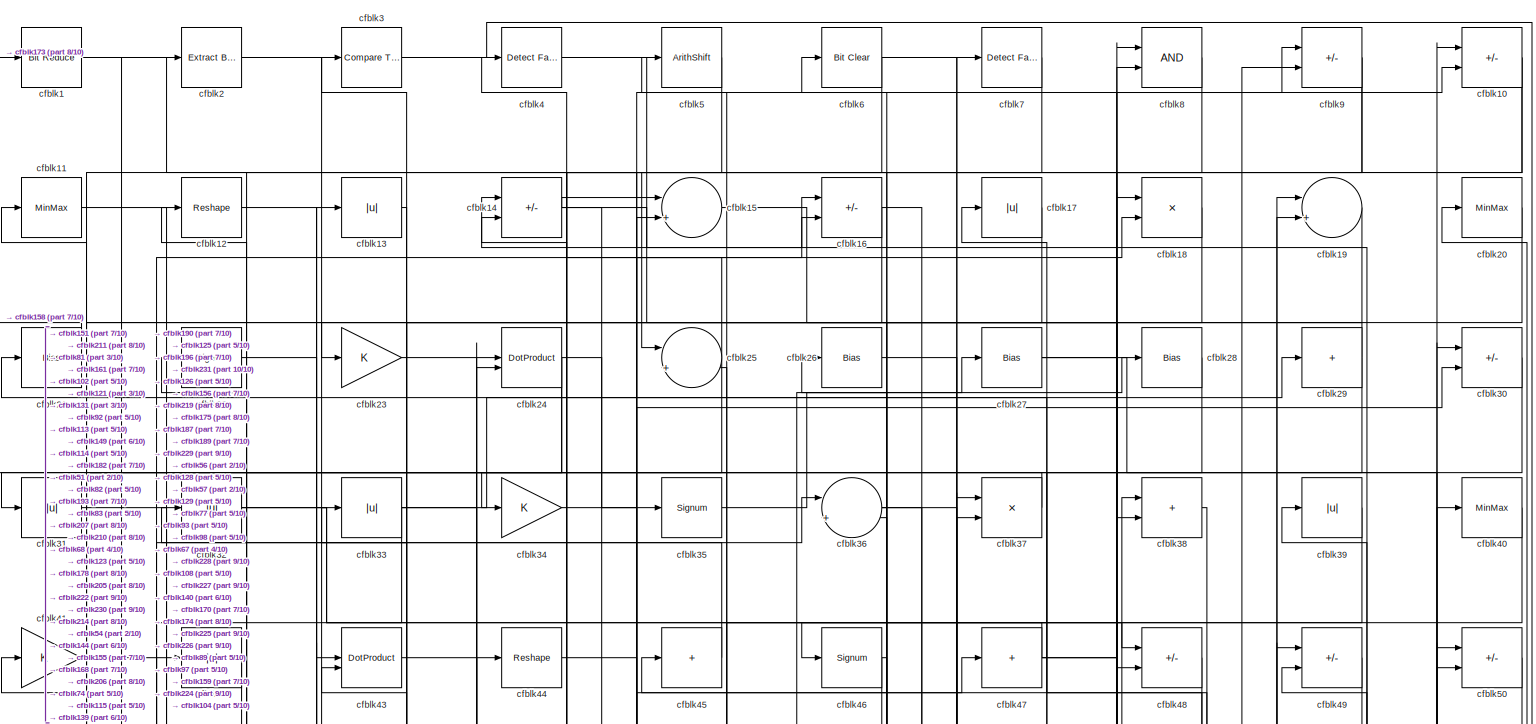
[diagram: root canvas - part 1/10, full width, top band]
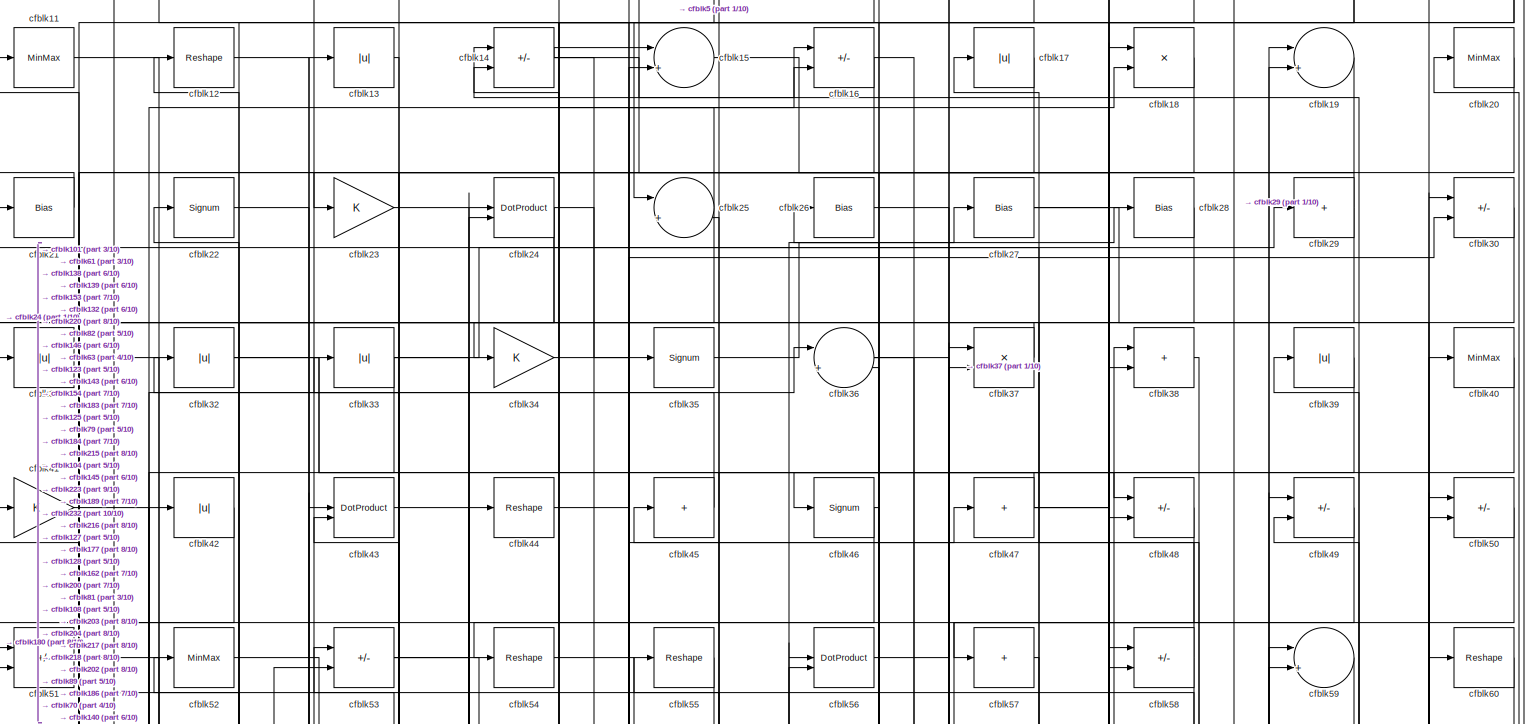
[diagram: root canvas - part 2/10, full width, top band]
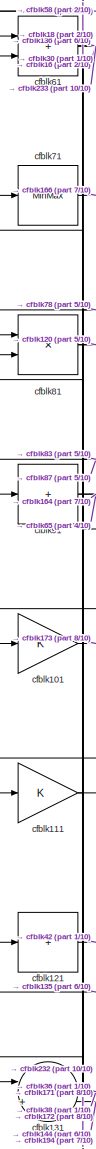
[diagram: root canvas - part 3/10, middle left region]
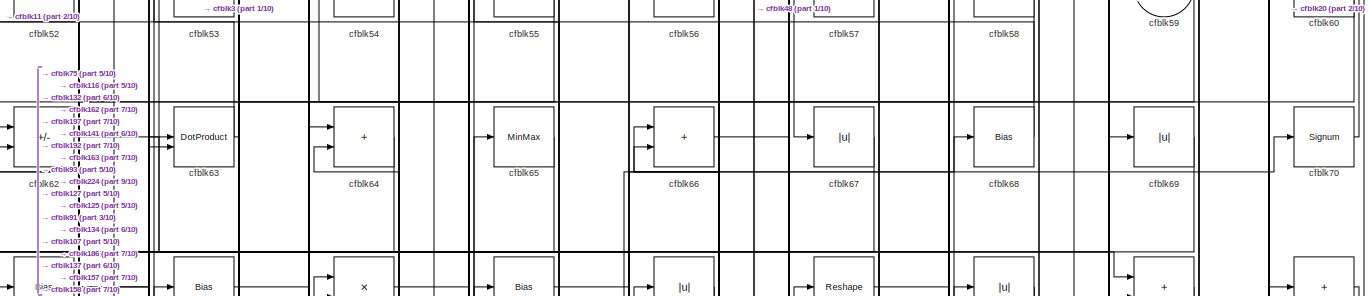
[diagram: root canvas - part 4/10, full width, top band]
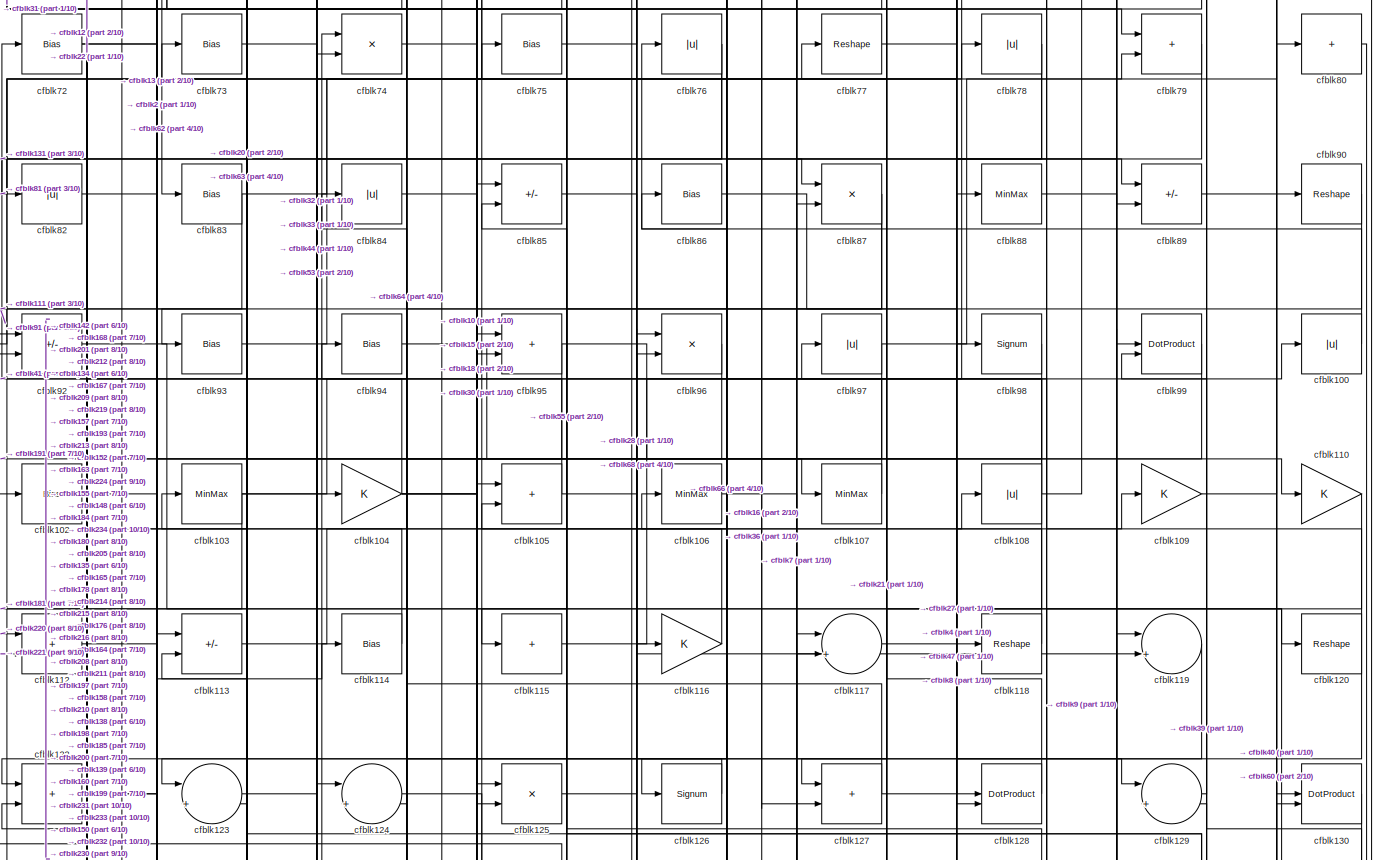
[diagram: root canvas - part 5/10, full width, middle band]
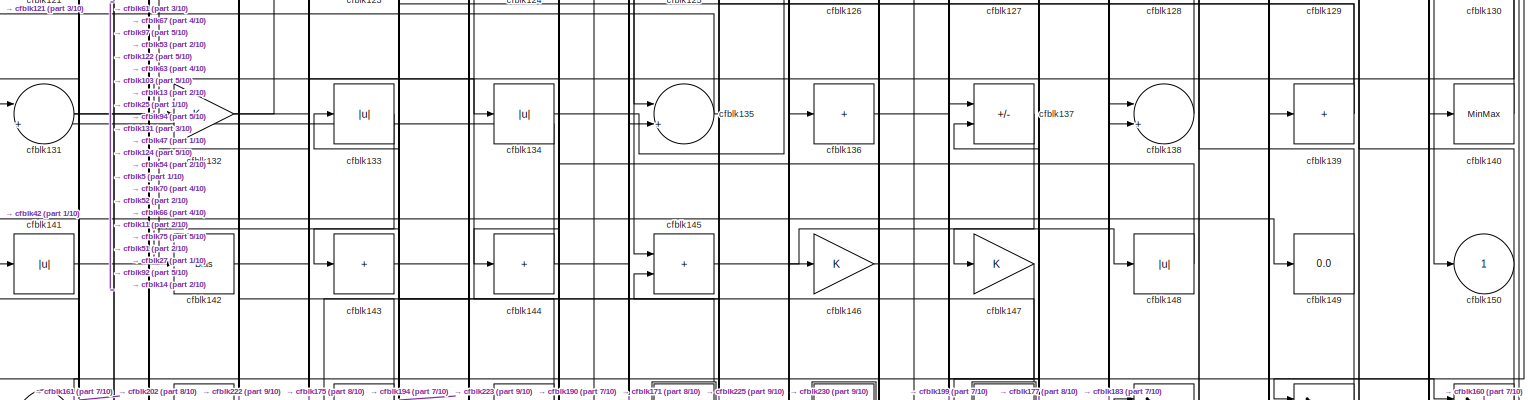
[diagram: root canvas - part 6/10, full width, middle band]
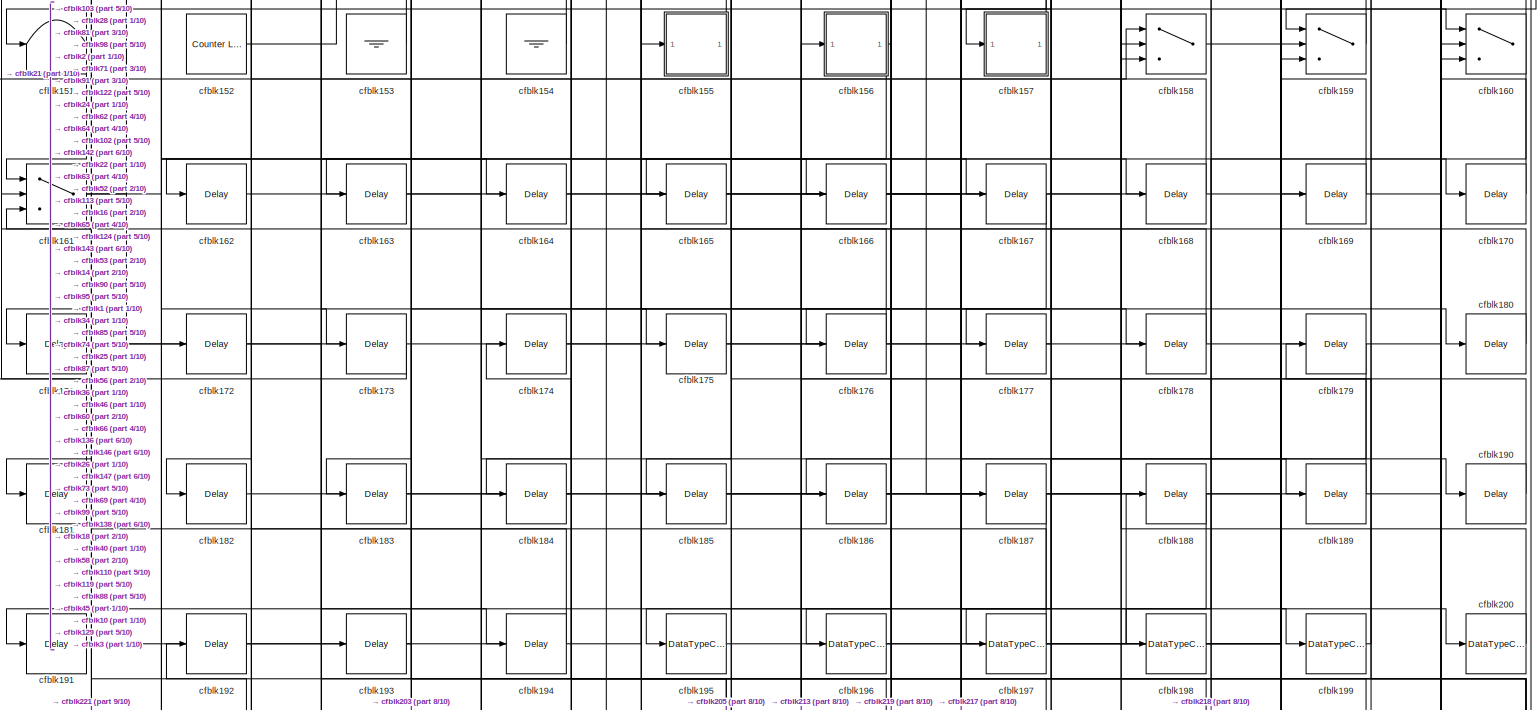
[diagram: root canvas - part 7/10, full width, bottom band]
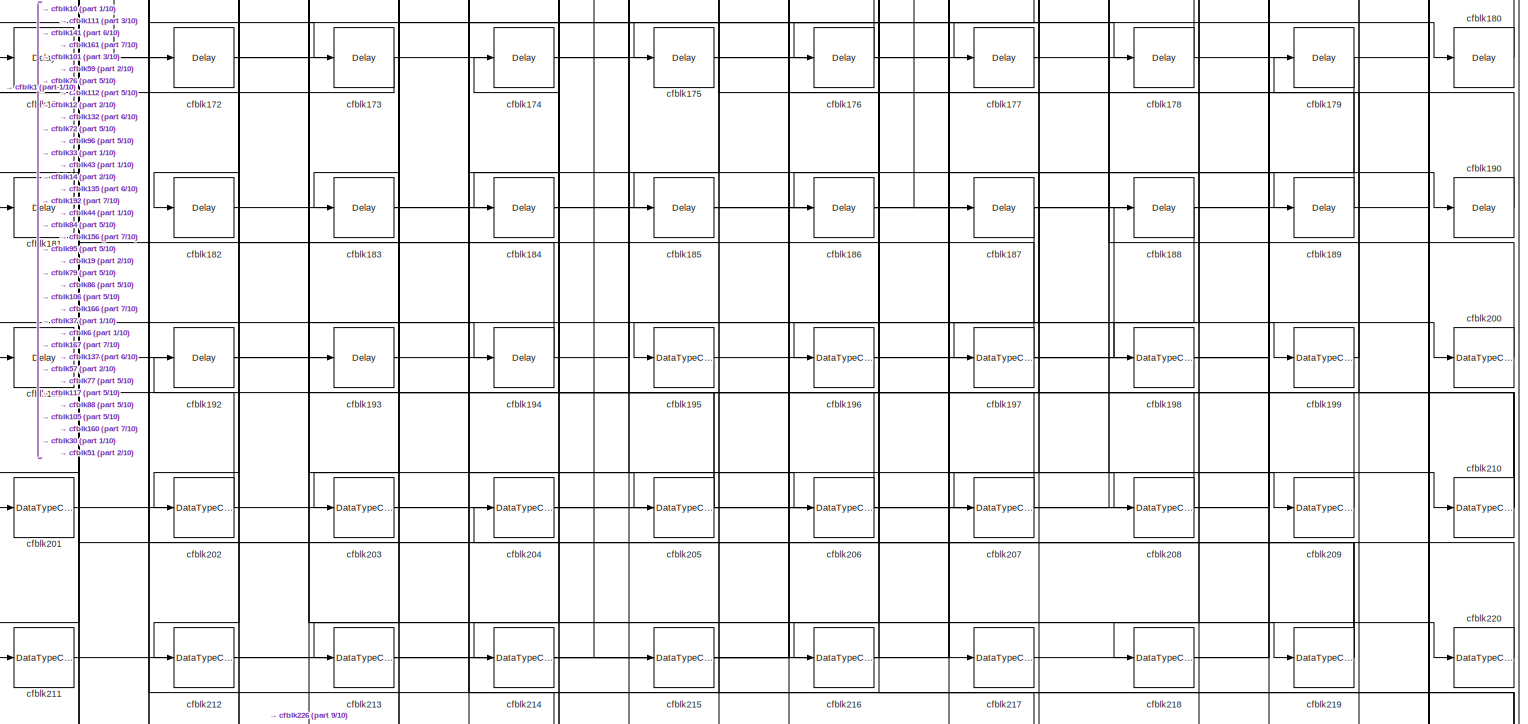
[diagram: root canvas - part 8/10, full width, bottom band]
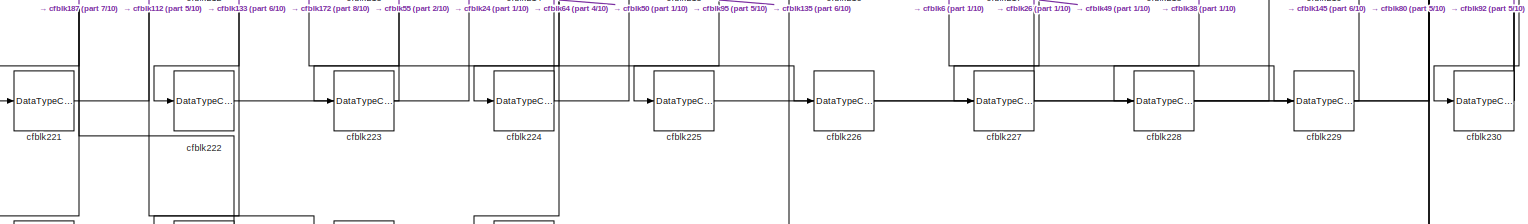
[diagram: root canvas - part 9/10, full width, bottom band]
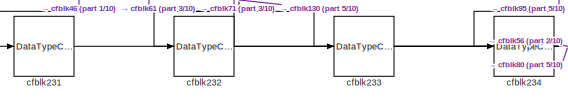
[diagram: root canvas - part 10/10, bottom left region]
MODEL slx_0fbae12034cd
KIND model
CONFIG AbsTol = auto
CONFIG EnableMultiTasking = off
CONFIG FixedStep = auto
CONFIG MaxStep = auto
CONFIG MinStep = auto
CONFIG RelTol = 1e-3
CONFIG SampleTimeConstraint = Unconstrained
CONFIG SolverName = VariableStepAuto
CONFIG StartTime = 0.0
CONFIG StopTime = 10.0
BLOCK [Reference] cfblk1  REF=hdlsllib/Logic and Bit
Operations/Bit Reduce
  SourceBlock = hdlsllib/Logic and Bit\nOperations/Bit Reduce
  SourceType = Bit Reduce
BLOCK [Sum] cfblk10
  IconShape = rectangular
  Inputs = +-
BLOCK [Abs] cfblk100
  SaturateOnIntegerOverflow = off
BLOCK [Gain] cfblk101
BLOCK [Bias] cfblk102
  Bias = 0.0
  SaturateOnIntegerOverflow = off
BLOCK [MinMax] cfblk103
BLOCK [Gain] cfblk104
BLOCK [Sum] cfblk105
  IconShape = rectangular
BLOCK [MinMax] cfblk106
BLOCK [MinMax] cfblk107
BLOCK [Abs] cfblk108
  SaturateOnIntegerOverflow = off
BLOCK [Gain] cfblk109
BLOCK [MinMax] cfblk11
BLOCK [Gain] cfblk110
BLOCK [Gain] cfblk111
BLOCK [Sum] cfblk112
  IconShape = rectangular
BLOCK [Sum] cfblk113
  IconShape = rectangular
  Inputs = +-
BLOCK [Bias] cfblk114
  Bias = 0.0
  SaturateOnIntegerOverflow = off
BLOCK [Sum] cfblk115
  IconShape = rectangular
  Inputs = +
BLOCK [Gain] cfblk116
BLOCK [Sum] cfblk117
  Inputs = |++
BLOCK [Reshape] cfblk118
BLOCK [Sum] cfblk119
  Inputs = |++
BLOCK [Reshape] cfblk12
BLOCK [Reshape] cfblk120
BLOCK [Sum] cfblk121
  IconShape = rectangular
  Inputs = +
BLOCK [Sum] cfblk122
  IconShape = rectangular
BLOCK [Sum] cfblk123
  Inputs = |++
BLOCK [Sum] cfblk124
  Inputs = |++
BLOCK [Product] cfblk125
  Inputs = */
  RndMeth = Zero
  SaturateOnIntegerOverflow = on
BLOCK [Signum] cfblk126
BLOCK [Sum] cfblk127
  IconShape = rectangular
BLOCK [DotProduct] cfblk128
  OutDataTypeStr = Inherit: Inherit via internal rule
BLOCK [Sum] cfblk129
  Inputs = |++
BLOCK [Abs] cfblk13
  SaturateOnIntegerOverflow = off
BLOCK [DotProduct] cfblk130
  OutDataTypeStr = Inherit: Inherit via internal rule
BLOCK [Sum] cfblk131
  Inputs = |++
BLOCK [Gain] cfblk132
BLOCK [Abs] cfblk133
  SaturateOnIntegerOverflow = off
BLOCK [Abs] cfblk134
  SaturateOnIntegerOverflow = off
BLOCK [Sum] cfblk135
  Inputs = |++
BLOCK [Sum] cfblk136
  IconShape = rectangular
  Inputs = +
BLOCK [Sum] cfblk137
  IconShape = rectangular
  Inputs = +-
BLOCK [Sum] cfblk138
  Inputs = |++
BLOCK [Sum] cfblk139
  IconShape = rectangular
  Inputs = +
BLOCK [Sum] cfblk14
  IconShape = rectangular
  Inputs = +-
BLOCK [MinMax] cfblk140
BLOCK [Abs] cfblk141
  SaturateOnIntegerOverflow = off
BLOCK [Bias] cfblk142
  Bias = 0.0
  SaturateOnIntegerOverflow = off
BLOCK [Sum] cfblk143
  IconShape = rectangular
  Inputs = +
BLOCK [Sum] cfblk144
  IconShape = rectangular
  Inputs = +
BLOCK [Sum] cfblk145
  IconShape = rectangular
BLOCK [Gain] cfblk146
BLOCK [Gain] cfblk147
BLOCK [Abs] cfblk148
  SaturateOnIntegerOverflow = off
BLOCK [Display] cfblk149
  Decimation = 1
BLOCK [Sum] cfblk15
  Inputs = |++
BLOCK [Outport] cfblk150
  VectorParamsAs1DForOutWhenUnconnected = off
BLOCK [Terminator] cfblk151
BLOCK [Reference] cfblk152  REF=hdlsllib/Sources/Counter
Limited
  SourceBlock = hdlsllib/Sources/Counter\nLimited
  SourceType = Counter Limited
BLOCK [Ground] cfblk153
BLOCK [Ground] cfblk154
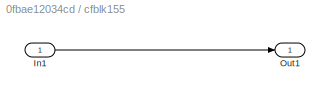
BLOCK [SubSystem] cfblk155
  LibrarySourceBlock = hdlsllib/Ports &\nSubsystems/Subsystem
BLOCK [Inport] cfblk155/In1
BLOCK [Outport] cfblk155/Out1
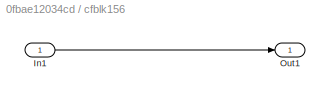
BLOCK [SubSystem] cfblk156
  LibrarySourceBlock = hdlsllib/Ports &\nSubsystems/Subsystem
BLOCK [Inport] cfblk156/In1
BLOCK [Outport] cfblk156/Out1
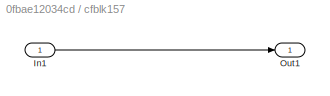
BLOCK [SubSystem] cfblk157
  LibrarySourceBlock = hdlsllib/Ports &\nSubsystems/Subsystem
BLOCK [Inport] cfblk157/In1
BLOCK [Outport] cfblk157/Out1
BLOCK [Switch] cfblk158
  InputSameDT = off
  SaturateOnIntegerOverflow = off
BLOCK [Switch] cfblk159
  InputSameDT = off
  SaturateOnIntegerOverflow = off
BLOCK [Sum] cfblk16
  IconShape = rectangular
  Inputs = +-
BLOCK [Switch] cfblk160
  InputSameDT = off
  SaturateOnIntegerOverflow = off
BLOCK [Switch] cfblk161
  InputSameDT = off
  SaturateOnIntegerOverflow = off
BLOCK [Delay] cfblk162
  InputPortMap = u0
  SampleTime = 1
BLOCK [Delay] cfblk163
  InputPortMap = u0
  SampleTime = 1
BLOCK [Delay] cfblk164
  InputPortMap = u0
  SampleTime = 1
BLOCK [Delay] cfblk165
  InputPortMap = u0
  SampleTime = 1
BLOCK [Delay] cfblk166
  InputPortMap = u0
  SampleTime = 1
BLOCK [Delay] cfblk167
  InputPortMap = u0
  SampleTime = 1
BLOCK [Delay] cfblk168
  InputPortMap = u0
  SampleTime = 1
BLOCK [Delay] cfblk169
  InputPortMap = u0
  SampleTime = 1
BLOCK [Abs] cfblk17
  SaturateOnIntegerOverflow = off
BLOCK [Delay] cfblk170
  InputPortMap = u0
  SampleTime = 1
BLOCK [Delay] cfblk171
  InputPortMap = u0
  SampleTime = 1
BLOCK [Delay] cfblk172
  InputPortMap = u0
  SampleTime = 1
BLOCK [Delay] cfblk173
  InputPortMap = u0
  SampleTime = 1
BLOCK [Delay] cfblk174
  InputPortMap = u0
  SampleTime = 1
BLOCK [Delay] cfblk175
  InputPortMap = u0
  SampleTime = 1
BLOCK [Delay] cfblk176
  InputPortMap = u0
  SampleTime = 1
BLOCK [Delay] cfblk177
  InputPortMap = u0
  SampleTime = 1
BLOCK [Delay] cfblk178
  InputPortMap = u0
  SampleTime = 1
BLOCK [Delay] cfblk179
  InputPortMap = u0
  SampleTime = 1
BLOCK [Product] cfblk18
  Inputs = */
  RndMeth = Zero
  SaturateOnIntegerOverflow = on
BLOCK [Delay] cfblk180
  InputPortMap = u0
  SampleTime = 1
BLOCK [Delay] cfblk181
  InputPortMap = u0
  SampleTime = 1
BLOCK [Delay] cfblk182
  InputPortMap = u0
  SampleTime = 1
BLOCK [Delay] cfblk183
  InputPortMap = u0
  SampleTime = 1
BLOCK [Delay] cfblk184
  InputPortMap = u0
  SampleTime = 1
BLOCK [Delay] cfblk185
  InputPortMap = u0
  SampleTime = 1
BLOCK [Delay] cfblk186
  InputPortMap = u0
  SampleTime = 1
BLOCK [Delay] cfblk187
  InputPortMap = u0
  SampleTime = 1
BLOCK [Delay] cfblk188
  InputPortMap = u0
  SampleTime = 1
BLOCK [Delay] cfblk189
  InputPortMap = u0
  SampleTime = 1
BLOCK [Sum] cfblk19
  Inputs = |++
BLOCK [Delay] cfblk190
  InputPortMap = u0
  SampleTime = 1
BLOCK [Delay] cfblk191
  InputPortMap = u0
  SampleTime = 1
BLOCK [Delay] cfblk192
  InputPortMap = u0
  SampleTime = 1
BLOCK [Delay] cfblk193
  InputPortMap = u0
  SampleTime = 1
BLOCK [Delay] cfblk194
  InputPortMap = u0
  SampleTime = 1
BLOCK [DataTypeConversion] cfblk195
  OutDataTypeStr = uint8
  RndMeth = Floor
  SaturateOnIntegerOverflow = off
BLOCK [DataTypeConversion] cfblk196
  OutDataTypeStr = uint8
  RndMeth = Floor
  SaturateOnIntegerOverflow = off
BLOCK [DataTypeConversion] cfblk197
  RndMeth = Floor
  SaturateOnIntegerOverflow = off
BLOCK [DataTypeConversion] cfblk198
  OutDataTypeStr = uint8
  RndMeth = Floor
  SaturateOnIntegerOverflow = off
BLOCK [DataTypeConversion] cfblk199
  OutDataTypeStr = uint8
  RndMeth = Floor
  SaturateOnIntegerOverflow = off
BLOCK [Reference] cfblk2  REF=simulink/Logic and Bit
Operations/Extract Bits
  LibrarySourceBlock = hdlsllib/Logic and Bit\nOperations/Extract Bits
  SourceBlock = simulink/Logic and Bit\nOperations/Extract Bits
  SourceType = Extract Bits
BLOCK [MinMax] cfblk20
BLOCK [DataTypeConversion] cfblk200
  OutDataTypeStr = uint8
  RndMeth = Floor
  SaturateOnIntegerOverflow = off
BLOCK [DataTypeConversion] cfblk201
  OutDataTypeStr = uint8
  RndMeth = Floor
  SaturateOnIntegerOverflow = off
BLOCK [DataTypeConversion] cfblk202
  OutDataTypeStr = uint8
  RndMeth = Floor
  SaturateOnIntegerOverflow = off
BLOCK [DataTypeConversion] cfblk203
  OutDataTypeStr = uint8
  RndMeth = Floor
  SaturateOnIntegerOverflow = off
BLOCK [DataTypeConversion] cfblk204
  OutDataTypeStr = uint8
  RndMeth = Floor
  SaturateOnIntegerOverflow = off
BLOCK [DataTypeConversion] cfblk205
  RndMeth = Floor
  SaturateOnIntegerOverflow = off
BLOCK [DataTypeConversion] cfblk206
  OutDataTypeStr = uint8
  RndMeth = Floor
  SaturateOnIntegerOverflow = off
BLOCK [DataTypeConversion] cfblk207
  OutDataTypeStr = uint8
  RndMeth = Floor
  SaturateOnIntegerOverflow = off
BLOCK [DataTypeConversion] cfblk208
  OutDataTypeStr = uint8
  RndMeth = Floor
  SaturateOnIntegerOverflow = off
BLOCK [DataTypeConversion] cfblk209
  OutDataTypeStr = uint8
  RndMeth = Floor
  SaturateOnIntegerOverflow = off
BLOCK [Bias] cfblk21
  Bias = 0.0
  SaturateOnIntegerOverflow = off
BLOCK [DataTypeConversion] cfblk210
  RndMeth = Floor
  SaturateOnIntegerOverflow = off
BLOCK [DataTypeConversion] cfblk211
  OutDataTypeStr = uint8
  RndMeth = Floor
  SaturateOnIntegerOverflow = off
BLOCK [DataTypeConversion] cfblk212
  OutDataTypeStr = uint8
  RndMeth = Floor
  SaturateOnIntegerOverflow = off
BLOCK [DataTypeConversion] cfblk213
  OutDataTypeStr = uint8
  RndMeth = Floor
  SaturateOnIntegerOverflow = off
BLOCK [DataTypeConversion] cfblk214
  OutDataTypeStr = uint8
  RndMeth = Floor
  SaturateOnIntegerOverflow = off
BLOCK [DataTypeConversion] cfblk215
  OutDataTypeStr = uint8
  RndMeth = Floor
  SaturateOnIntegerOverflow = off
BLOCK [DataTypeConversion] cfblk216
  OutDataTypeStr = uint8
  RndMeth = Floor
  SaturateOnIntegerOverflow = off
BLOCK [DataTypeConversion] cfblk217
  OutDataTypeStr = uint8
  RndMeth = Floor
  SaturateOnIntegerOverflow = off
BLOCK [DataTypeConversion] cfblk218
  OutDataTypeStr = uint8
  RndMeth = Floor
  SaturateOnIntegerOverflow = off
BLOCK [DataTypeConversion] cfblk219
  RndMeth = Floor
  SaturateOnIntegerOverflow = off
BLOCK [Signum] cfblk22
BLOCK [DataTypeConversion] cfblk220
  OutDataTypeStr = uint8
  RndMeth = Floor
  SaturateOnIntegerOverflow = off
BLOCK [DataTypeConversion] cfblk221
  OutDataTypeStr = uint8
  RndMeth = Floor
  SaturateOnIntegerOverflow = off
BLOCK [DataTypeConversion] cfblk222
  OutDataTypeStr = uint8
  RndMeth = Floor
  SaturateOnIntegerOverflow = off
BLOCK [DataTypeConversion] cfblk223
  OutDataTypeStr = uint8
  RndMeth = Floor
  SaturateOnIntegerOverflow = off
BLOCK [DataTypeConversion] cfblk224
  RndMeth = Floor
  SaturateOnIntegerOverflow = off
BLOCK [DataTypeConversion] cfblk225
  OutDataTypeStr = uint8
  RndMeth = Floor
  SaturateOnIntegerOverflow = off
BLOCK [DataTypeConversion] cfblk226
  OutDataTypeStr = uint8
  RndMeth = Floor
  SaturateOnIntegerOverflow = off
BLOCK [DataTypeConversion] cfblk227
  OutDataTypeStr = uint8
  RndMeth = Floor
  SaturateOnIntegerOverflow = off
BLOCK [DataTypeConversion] cfblk228
  OutDataTypeStr = uint8
  RndMeth = Floor
  SaturateOnIntegerOverflow = off
BLOCK [DataTypeConversion] cfblk229
  OutDataTypeStr = uint8
  RndMeth = Floor
  SaturateOnIntegerOverflow = off
BLOCK [Gain] cfblk23
BLOCK [DataTypeConversion] cfblk230
  RndMeth = Floor
  SaturateOnIntegerOverflow = off
BLOCK [DataTypeConversion] cfblk231
  OutDataTypeStr = uint8
  RndMeth = Floor
  SaturateOnIntegerOverflow = off
BLOCK [DataTypeConversion] cfblk232
  RndMeth = Floor
  SaturateOnIntegerOverflow = off
BLOCK [DataTypeConversion] cfblk233
  OutDataTypeStr = uint8
  RndMeth = Floor
  SaturateOnIntegerOverflow = off
BLOCK [DataTypeConversion] cfblk234
  OutDataTypeStr = uint8
  RndMeth = Floor
  SaturateOnIntegerOverflow = off
BLOCK [DotProduct] cfblk24
  OutDataTypeStr = Inherit: Inherit via internal rule
BLOCK [Sum] cfblk25
  Inputs = |++
BLOCK [Bias] cfblk26
  Bias = 0.0
  SaturateOnIntegerOverflow = off
BLOCK [Bias] cfblk27
  Bias = 0.0
  SaturateOnIntegerOverflow = off
BLOCK [Bias] cfblk28
  Bias = 0.0
  SaturateOnIntegerOverflow = off
BLOCK [Sum] cfblk29
  IconShape = rectangular
  Inputs = +
BLOCK [Reference] cfblk3  REF=hdlsllib/Logic and Bit
Operations/Compare
To Zero
  SourceBlock = hdlsllib/Logic and Bit\nOperations/Compare\nTo Zero
  SourceType = Compare To Zero
BLOCK [Sum] cfblk30
  IconShape = rectangular
  Inputs = +-
BLOCK [Abs] cfblk31
  SaturateOnIntegerOverflow = off
BLOCK [Abs] cfblk32
  SaturateOnIntegerOverflow = off
BLOCK [Abs] cfblk33
  SaturateOnIntegerOverflow = off
BLOCK [Gain] cfblk34
BLOCK [Signum] cfblk35
BLOCK [Sum] cfblk36
  Inputs = |++
BLOCK [Product] cfblk37
  Inputs = */
  RndMeth = Zero
  SaturateOnIntegerOverflow = on
BLOCK [Sum] cfblk38
  IconShape = rectangular
BLOCK [Abs] cfblk39
  SaturateOnIntegerOverflow = off
BLOCK [Reference] cfblk4  REF=hdlsllib/Logic and Bit
Operations/Detect Fall
Nonpositive
  SourceBlock = hdlsllib/Logic and Bit\nOperations/Detect Fall\nNonpositive
  SourceType = Detect Fall Nonpositive
BLOCK [MinMax] cfblk40
BLOCK [Gain] cfblk41
BLOCK [Abs] cfblk42
  SaturateOnIntegerOverflow = off
BLOCK [DotProduct] cfblk43
  OutDataTypeStr = Inherit: Inherit via internal rule
BLOCK [Reshape] cfblk44
BLOCK [Sum] cfblk45
  IconShape = rectangular
  Inputs = +
BLOCK [Signum] cfblk46
BLOCK [Sum] cfblk47
  IconShape = rectangular
  Inputs = +
BLOCK [Sum] cfblk48
  IconShape = rectangular
  Inputs = +-
BLOCK [Sum] cfblk49
  IconShape = rectangular
  Inputs = +-
BLOCK [ArithShift] cfblk5
  BitShiftNumber = 8
  InputPortMap = u0
BLOCK [Sum] cfblk50
  IconShape = rectangular
  Inputs = +-
BLOCK [Sum] cfblk51
  IconShape = rectangular
  Inputs = +-
BLOCK [MinMax] cfblk52
BLOCK [Sum] cfblk53
  IconShape = rectangular
  Inputs = +-
BLOCK [Reshape] cfblk54
BLOCK [Reshape] cfblk55
BLOCK [DotProduct] cfblk56
  OutDataTypeStr = Inherit: Inherit via internal rule
BLOCK [Sum] cfblk57
  IconShape = rectangular
  Inputs = +
BLOCK [Sum] cfblk58
  IconShape = rectangular
  Inputs = +-
BLOCK [Sum] cfblk59
  Inputs = |++
BLOCK [Reference] cfblk6  REF=simulink/Logic and Bit
Operations/Bit Clear
  LibrarySourceBlock = hdlsllib/Logic and Bit\nOperations/Bit Clear
  SourceBlock = simulink/Logic and Bit\nOperations/Bit Clear
  SourceType = Bit Clear
BLOCK [Reshape] cfblk60
BLOCK [Sum] cfblk61
  IconShape = rectangular
BLOCK [Sum] cfblk62
  IconShape = rectangular
  Inputs = +-
BLOCK [DotProduct] cfblk63
  OutDataTypeStr = Inherit: Inherit via internal rule
BLOCK [Sum] cfblk64
  IconShape = rectangular
BLOCK [MinMax] cfblk65
BLOCK [Sum] cfblk66
  IconShape = rectangular
BLOCK [Abs] cfblk67
  SaturateOnIntegerOverflow = off
BLOCK [Bias] cfblk68
  Bias = 0.0
  SaturateOnIntegerOverflow = off
BLOCK [Abs] cfblk69
  SaturateOnIntegerOverflow = off
BLOCK [Reference] cfblk7  REF=hdlsllib/Logic and Bit
Operations/Detect Fall
Negative
  SourceBlock = hdlsllib/Logic and Bit\nOperations/Detect Fall\nNegative
  SourceType = Detect Fall Negative
BLOCK [Signum] cfblk70
BLOCK [MinMax] cfblk71
BLOCK [Bias] cfblk72
  Bias = 0.0
  SaturateOnIntegerOverflow = off
BLOCK [Bias] cfblk73
  Bias = 0.0
  SaturateOnIntegerOverflow = off
BLOCK [Product] cfblk74
  Inputs = */
  RndMeth = Zero
  SaturateOnIntegerOverflow = on
BLOCK [Bias] cfblk75
  Bias = 0.0
  SaturateOnIntegerOverflow = off
BLOCK [Abs] cfblk76
  SaturateOnIntegerOverflow = off
BLOCK [Reshape] cfblk77
BLOCK [Abs] cfblk78
  SaturateOnIntegerOverflow = off
BLOCK [Sum] cfblk79
  IconShape = rectangular
BLOCK [Logic] cfblk8
  AllPortsSameDT = off
  OutDataTypeStr = boolean
BLOCK [Sum] cfblk80
  IconShape = rectangular
  Inputs = +
BLOCK [Product] cfblk81
  Inputs = */
  RndMeth = Zero
  SaturateOnIntegerOverflow = on
BLOCK [Abs] cfblk82
  SaturateOnIntegerOverflow = off
BLOCK [Bias] cfblk83
  Bias = 0.0
  SaturateOnIntegerOverflow = off
BLOCK [Abs] cfblk84
  SaturateOnIntegerOverflow = off
BLOCK [Sum] cfblk85
  IconShape = rectangular
  Inputs = +-
BLOCK [Bias] cfblk86
  Bias = 0.0
  SaturateOnIntegerOverflow = off
BLOCK [Product] cfblk87
  Inputs = */
  RndMeth = Zero
  SaturateOnIntegerOverflow = on
BLOCK [MinMax] cfblk88
BLOCK [Sum] cfblk89
  IconShape = rectangular
  Inputs = +-
BLOCK [Sum] cfblk9
  IconShape = rectangular
  Inputs = +-
BLOCK [Reshape] cfblk90
BLOCK [Sum] cfblk91
  IconShape = rectangular
  Inputs = +
BLOCK [Sum] cfblk92
  IconShape = rectangular
  Inputs = +-
BLOCK [Bias] cfblk93
  Bias = 0.0
  SaturateOnIntegerOverflow = off
BLOCK [Bias] cfblk94
  Bias = 0.0
  SaturateOnIntegerOverflow = off
BLOCK [Sum] cfblk95
  IconShape = rectangular
BLOCK [Product] cfblk96
  Inputs = */
  RndMeth = Zero
  SaturateOnIntegerOverflow = on
BLOCK [Abs] cfblk97
  SaturateOnIntegerOverflow = off
BLOCK [Signum] cfblk98
BLOCK [DotProduct] cfblk99
  OutDataTypeStr = Inherit: Inherit via internal rule
LINE cfblk100:1 -> cfblk76:1
LINE cfblk101:1 -> cfblk173:1
LINE cfblk102:1 -> cfblk167:1
NET cfblk103:1 -> cfblk100:1, cfblk181:1, cfblk79:2
NET cfblk104:1 -> cfblk10:2, cfblk15:2, cfblk18:2, cfblk41:1
NET cfblk105:1 -> cfblk107:1, cfblk72:1
LINE cfblk106:1 -> cfblk208:1
LINE cfblk107:1 -> cfblk66:1
NET cfblk108:1 -> cfblk127:1, cfblk12:1, cfblk55:1, cfblk9:2
LINE cfblk109:1 -> cfblk90:1
NET cfblk10:1 -> cfblk126:1, cfblk211:1
LINE cfblk110:1 -> cfblk198:1
NET cfblk111:1 -> cfblk171:1, cfblk172:1
LINE cfblk112:1 -> cfblk219:1
LINE cfblk113:1 -> cfblk108:1
LINE cfblk114:1 -> cfblk22:1
LINE cfblk115:1 -> cfblk78:1
LINE cfblk116:1 -> cfblk62:1
LINE cfblk117:1 -> cfblk210:1
LINE cfblk118:1 -> cfblk85:2
LINE cfblk119:1 -> cfblk124:2
LINE cfblk11:1 -> cfblk138:1
NET cfblk120:1 -> cfblk123:2, cfblk97:1
LINE cfblk121:1 -> cfblk42:1
NET cfblk122:1 -> cfblk114:1, cfblk134:1
LINE cfblk123:1 -> cfblk44:1
LINE cfblk124:1 -> cfblk135:1
LINE cfblk125:1 -> cfblk28:1
LINE cfblk126:1 -> cfblk122:1
NET cfblk127:1 -> cfblk109:1, cfblk64:2
LINE cfblk128:1 -> cfblk21:1
LINE cfblk129:1 -> cfblk39:1
LINE cfblk12:1 -> cfblk220:1
LINE cfblk130:1 -> cfblk232:1
NET cfblk131:1 -> cfblk36:1, cfblk38:1
NET cfblk132:1 -> cfblk175:1, cfblk53:2
LINE cfblk133:1 -> cfblk222:1
LINE cfblk134:1 -> cfblk70:1
NET cfblk135:1 -> cfblk121:1, cfblk225:1
LINE cfblk136:1 -> cfblk160:1
LINE cfblk137:1 -> cfblk147:1
LINE cfblk138:1 -> cfblk75:1
NET cfblk139:1 -> cfblk103:1, cfblk5:1
LINE cfblk13:1 -> cfblk143:1
LINE cfblk140:1 -> cfblk14:1
LINE cfblk141:1 -> cfblk63:1
LINE cfblk142:1 -> cfblk194:1
LINE cfblk143:1 -> cfblk190:1
NET cfblk144:1 -> cfblk131:2, cfblk47:1
LINE cfblk145:1 -> cfblk148:1
LINE cfblk146:1 -> cfblk199:1
LINE cfblk147:1 -> cfblk161:1
LINE cfblk148:1 -> cfblk94:1
NET cfblk14:1 -> cfblk15:1, cfblk16:1, cfblk215:1
LINE cfblk152:1 -> cfblk74:2
LINE cfblk153:1 -> cfblk52:1
LINE cfblk154:1 -> cfblk53:1
LINE cfblk155/In1:1 -> cfblk155/Out1:1
LINE cfblk155:1 -> cfblk74:1
LINE cfblk156/In1:1 -> cfblk156/Out1:1
NET cfblk156:1 -> cfblk185:1, cfblk36:2
LINE cfblk157/In1:1 -> cfblk157/Out1:1
LINE cfblk157:1 -> cfblk73:1
LINE cfblk158:1 -> cfblk69:1
LINE cfblk159:1 -> cfblk45:1
LINE cfblk15:1 -> cfblk128:1
NET cfblk160:1 -> cfblk129:2, cfblk218:1
NET cfblk161:1 -> cfblk170:1, cfblk2:1
LINE cfblk162:1 -> cfblk58:1
LINE cfblk163:1 -> cfblk124:1
LINE cfblk164:1 -> cfblk87:2
LINE cfblk165:1 -> cfblk160:2
LINE cfblk166:1 -> cfblk217:1
LINE cfblk167:1 -> cfblk203:1
LINE cfblk168:1 -> cfblk122:2
LINE cfblk169:1 -> cfblk159:2
NET cfblk16:1 -> cfblk127:2, cfblk183:1
LINE cfblk170:1 -> cfblk10:1
LINE cfblk171:1 -> cfblk135:2
LINE cfblk172:1 -> cfblk226:1
LINE cfblk173:1 -> cfblk1:1
LINE cfblk174:1 -> cfblk30:1
LINE cfblk175:1 -> cfblk37:1
LINE cfblk176:1 -> cfblk95:1
LINE cfblk177:1 -> cfblk137:2
LINE cfblk178:1 -> cfblk105:2
LINE cfblk179:1 -> cfblk207:1
LINE cfblk17:1 -> cfblk61:1
LINE cfblk180:1 -> cfblk51:1
LINE cfblk181:1 -> cfblk161:2
LINE cfblk182:1 -> cfblk160:3
LINE cfblk183:1 -> cfblk138:2
LINE cfblk184:1 -> cfblk14:2
LINE cfblk185:1 -> cfblk119:1
LINE cfblk186:1 -> cfblk66:2
LINE cfblk187:1 -> cfblk221:1
LINE cfblk188:1 -> cfblk195:1
LINE cfblk189:1 -> cfblk56:1
LINE cfblk18:1 -> cfblk101:1
LINE cfblk190:1 -> cfblk25:2
LINE cfblk191:1 -> cfblk85:1
LINE cfblk192:1 -> cfblk63:2
LINE cfblk193:1 -> cfblk113:2
LINE cfblk194:1 -> cfblk81:2
LINE cfblk195:1 -> cfblk159:3
LINE cfblk196:1 -> cfblk188:1
NET cfblk197:1 -> cfblk169:1, cfblk62:2
LINE cfblk198:1 -> cfblk99:1
LINE cfblk199:1 -> cfblk99:2
LINE cfblk19:1 -> cfblk216:1
LINE cfblk1:1 -> cfblk155:1
LINE cfblk200:1 -> cfblk18:1
LINE cfblk201:1 -> cfblk88:1
LINE cfblk202:1 -> cfblk141:1
LINE cfblk203:1 -> cfblk59:1
LINE cfblk204:1 -> cfblk59:2
NET cfblk205:1 -> cfblk105:1, cfblk192:1
LINE cfblk206:1 -> cfblk43:1
LINE cfblk207:1 -> cfblk43:2
LINE cfblk208:1 -> cfblk77:1
LINE cfblk209:1 -> cfblk106:1
LINE cfblk20:1 -> cfblk123:1
NET cfblk210:1 -> cfblk174:1, cfblk179:1, cfblk33:1, cfblk84:1
LINE cfblk211:1 -> cfblk117:1
LINE cfblk212:1 -> cfblk117:2
LINE cfblk213:1 -> cfblk156:1
LINE cfblk214:1 -> cfblk96:1
LINE cfblk215:1 -> cfblk96:2
LINE cfblk216:1 -> cfblk86:1
LINE cfblk217:1 -> cfblk19:1
LINE cfblk218:1 -> cfblk19:2
NET cfblk219:1 -> cfblk161:3, cfblk204:1, cfblk6:1
LINE cfblk21:1 -> cfblk158:1
LINE cfblk220:1 -> cfblk112:1
LINE cfblk221:1 -> cfblk112:2
LINE cfblk222:1 -> cfblk24:2
LINE cfblk223:1 -> cfblk133:1
NET cfblk224:1 -> cfblk64:1, cfblk95:2
LINE cfblk225:1 -> cfblk50:1
LINE cfblk226:1 -> cfblk50:2
LINE cfblk227:1 -> cfblk26:1
LINE cfblk228:1 -> cfblk49:1
LINE cfblk229:1 -> cfblk49:2
LINE cfblk22:1 -> cfblk193:1
NET cfblk230:1 -> cfblk145:2, cfblk24:1, cfblk92:1
LINE cfblk231:1 -> cfblk80:1
NET cfblk232:1 -> cfblk56:2, cfblk71:1
LINE cfblk233:1 -> cfblk130:1
LINE cfblk234:1 -> cfblk130:2
LINE cfblk23:1 -> cfblk48:1
NET cfblk24:1 -> cfblk182:1, cfblk35:1, cfblk51:2
NET cfblk25:1 -> cfblk144:1, cfblk4:1
LINE cfblk26:1 -> cfblk189:1
NET cfblk27:1 -> cfblk140:1, cfblk89:2
LINE cfblk28:1 -> cfblk151:1
NET cfblk29:1 -> cfblk23:1, cfblk57:1
LINE cfblk2:1 -> cfblk83:1
LINE cfblk30:1 -> cfblk81:1
LINE cfblk31:1 -> cfblk113:1
NET cfblk32:1 -> cfblk104:1, cfblk48:2
NET cfblk33:1 -> cfblk178:1, cfblk29:1, cfblk92:2
LINE cfblk34:1 -> cfblk168:1
LINE cfblk35:1 -> cfblk27:1
NET cfblk36:1 -> cfblk187:1, cfblk89:1
LINE cfblk37:1 -> cfblk31:1
LINE cfblk38:1 -> cfblk228:1
LINE cfblk39:1 -> cfblk115:1
LINE cfblk3:1 -> cfblk159:1
LINE cfblk40:1 -> cfblk158:2
LINE cfblk41:1 -> cfblk102:1
LINE cfblk42:1 -> cfblk149:1
LINE cfblk43:1 -> cfblk205:1
LINE cfblk44:1 -> cfblk206:1
LINE cfblk45:1 -> cfblk32:1
NET cfblk46:1 -> cfblk196:1, cfblk231:1
NET cfblk47:1 -> cfblk129:1, cfblk46:1, cfblk9:1
LINE cfblk48:1 -> cfblk67:1
LINE cfblk49:1 -> cfblk227:1
LINE cfblk4:1 -> cfblk98:1
LINE cfblk50:1 -> cfblk224:1
LINE cfblk51:1 -> cfblk139:1
LINE cfblk52:1 -> cfblk146:1
NET cfblk53:1 -> cfblk125:2, cfblk79:1
LINE cfblk54:1 -> cfblk145:1
LINE cfblk55:1 -> cfblk223:1
LINE cfblk56:1 -> cfblk37:2
LINE cfblk57:1 -> cfblk177:1
NET cfblk58:1 -> cfblk17:1, cfblk61:2
LINE cfblk59:1 -> cfblk202:1
LINE cfblk5:1 -> cfblk54:1
LINE cfblk60:1 -> cfblk186:1
NET cfblk61:1 -> cfblk136:1, cfblk16:2, cfblk233:1
LINE cfblk62:1 -> cfblk125:1
NET cfblk63:1 -> cfblk11:1, cfblk93:1
LINE cfblk64:1 -> cfblk162:1
LINE cfblk65:1 -> cfblk163:1
LINE cfblk66:1 -> cfblk137:1
LINE cfblk67:1 -> cfblk132:1
LINE cfblk68:1 -> cfblk3:1
LINE cfblk69:1 -> cfblk157:1
NET cfblk6:1 -> cfblk214:1, cfblk229:1
LINE cfblk70:1 -> cfblk20:1
LINE cfblk71:1 -> cfblk166:1
NET cfblk72:1 -> cfblk110:1, cfblk209:1
LINE cfblk73:1 -> cfblk87:1
LINE cfblk74:1 -> cfblk30:2
LINE cfblk75:1 -> cfblk68:1
NET cfblk76:1 -> cfblk201:1, cfblk212:1
LINE cfblk77:1 -> cfblk8:2
NET cfblk78:1 -> cfblk128:2, cfblk131:1
LINE cfblk79:1 -> cfblk176:1
LINE cfblk7:1 -> cfblk25:1
LINE cfblk80:1 -> cfblk230:1
NET cfblk81:1 -> cfblk120:1, cfblk58:2
LINE cfblk82:1 -> cfblk13:1
NET cfblk83:1 -> cfblk111:1, cfblk7:1
LINE cfblk84:1 -> cfblk180:1
LINE cfblk85:1 -> cfblk119:2
LINE cfblk86:1 -> cfblk118:1
NET cfblk87:1 -> cfblk165:1, cfblk91:1
LINE cfblk88:1 -> cfblk200:1
LINE cfblk89:1 -> cfblk60:1
LINE cfblk8:1 -> cfblk34:1
LINE cfblk90:1 -> cfblk184:1
NET cfblk91:1 -> cfblk164:1, cfblk65:1
LINE cfblk92:1 -> cfblk150:1
LINE cfblk93:1 -> cfblk8:1
LINE cfblk94:1 -> cfblk116:1
NET cfblk95:1 -> cfblk158:3, cfblk234:1
LINE cfblk96:1 -> cfblk213:1
NET cfblk97:1 -> cfblk142:1, cfblk40:1
LINE cfblk98:1 -> cfblk191:1
LINE cfblk99:1 -> cfblk197:1
NET cfblk9:1 -> cfblk38:2, cfblk82:1
note: NET lines group one-source signal fan-out (src -> all destinations, sorted); 1:1 wires keep LINE
